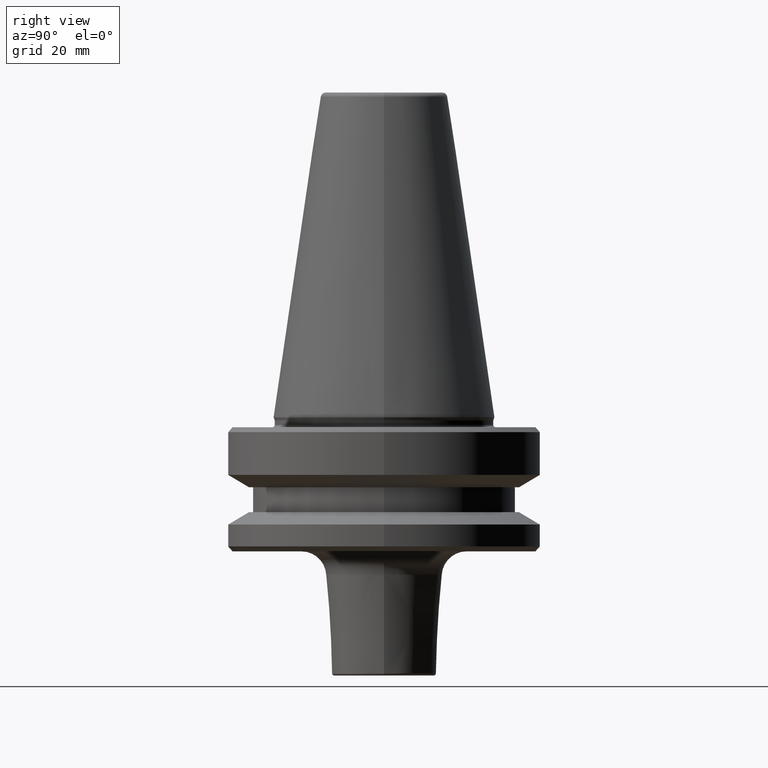
[diagram: clean part render]
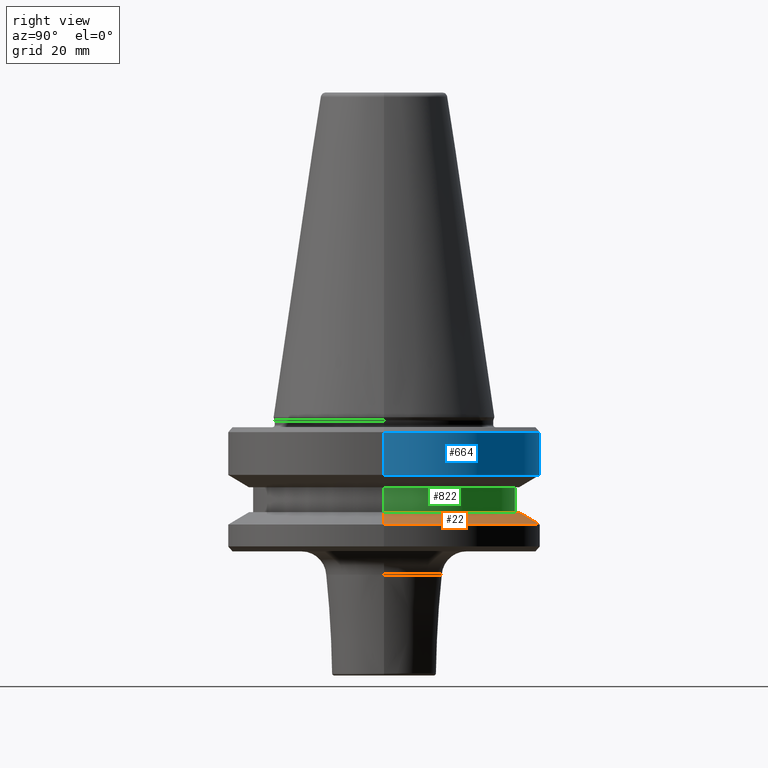
[diagram: same view with three faces highlighted in distinct colors, each labeled with its STEP entity id]
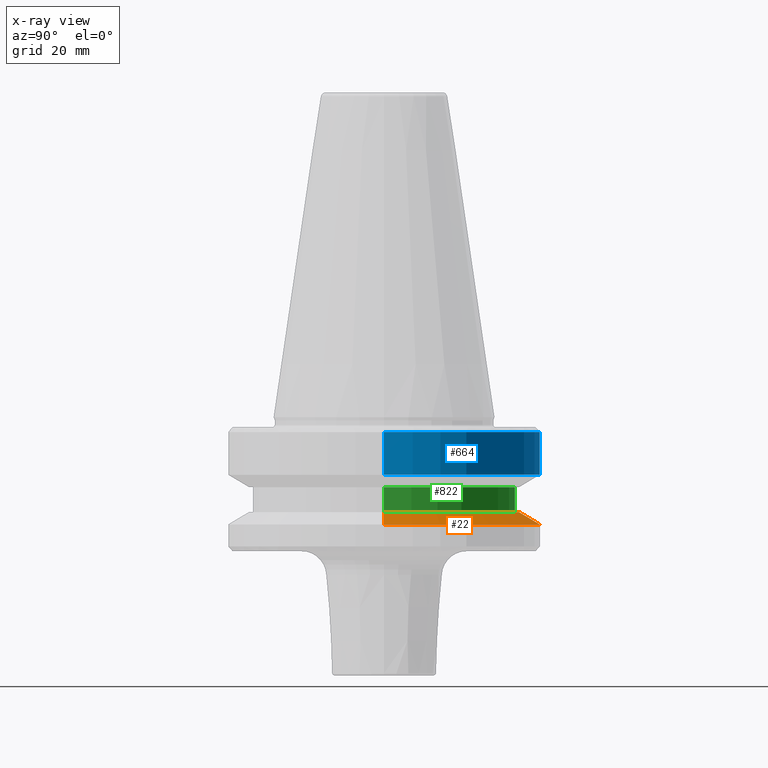
[diagram: x-ray of the same camera — body ghosted, the three highlighted faces saturated]
A machine part, right view with three faces highlighted in distinct colors.
The next image is the same camera in x-ray (body ghosted, the three faces saturated) — at least one of them is partly hidden behind the body in this view.
Their STEP definitions:

[orange] entity #22 — the highlighted conical surface has half-angle 60 deg.
#6 = VERTEX_POINT ( 'NONE', #226 ) ;
#22 = ADVANCED_FACE ( 'NONE', ( #801 ), #705, .T. ) ;
#25 = CARTESIAN_POINT ( 'NONE',  ( -31.50000000000008500, 3.857637417314172900E-015, -87.00014200631733300 ) ) ;
#101 = CARTESIAN_POINT ( 'NONE',  ( 0.0000000000000000000, 0.0000000000000000000, -87.00014200631733300 ) ) ;
#127 = EDGE_LOOP ( 'NONE', ( #557, #546, #905, #637 ) ) ;
#166 = CARTESIAN_POINT ( 'NONE',  ( 0.0000000000000000000, 0.0000000000000000000, -87.00014200631733300 ) ) ;
#174 = CARTESIAN_POINT ( 'NONE',  ( 0.0000000000000000000, 0.0000000000000000000, -84.50000000000068200 ) ) ;
#200 = AXIS2_PLACEMENT_3D ( 'NONE', #174, #812, #253 ) ;
#208 = EDGE_CURVE ( 'NONE', #287, #886, #563, .T. ) ;
#221 = CARTESIAN_POINT ( 'NONE',  ( 31.50000000000008500, 0.0000000000000000000, -87.00014200631733300 ) ) ;
#226 = CARTESIAN_POINT ( 'NONE',  ( 27.16962701892256100, 3.592478546794633900E-015, -84.50000000000068200 ) ) ;
#235 = DIRECTION ( 'NONE',  ( -0.8660254037844332700, 0.0000000000000000000, -0.5000000000000093300 ) ) ;
#244 = CIRCLE ( 'NONE', #919, 31.50000000000008500 ) ;
#253 = DIRECTION ( 'NONE',  ( 1.000000000000000000, 0.0000000000000000000, 0.0000000000000000000 ) ) ;
#271 = DIRECTION ( 'NONE',  ( 1.000000000000000000, 0.0000000000000000000, 0.0000000000000000000 ) ) ;
#287 = VERTEX_POINT ( 'NONE', #864 ) ;
#308 = DIRECTION ( 'NONE',  ( 0.8660254037844332700, 1.060575238724900300E-016, -0.5000000000000093300 ) ) ;
#360 = VECTOR ( 'NONE', #308, 1000.000000000000000 ) ;
#405 = DIRECTION ( 'NONE',  ( 0.0000000000000000000, 0.0000000000000000000, -1.000000000000000000 ) ) ;
#414 = EDGE_CURVE ( 'NONE', #846, #886, #244, .T. ) ;
#437 = CIRCLE ( 'NONE', #200, 27.16962701892256100 ) ;
#461 = CARTESIAN_POINT ( 'NONE',  ( 31.50000000000008500, 3.857637417314172900E-015, -87.00014200631733300 ) ) ;
#478 = AXIS2_PLACEMENT_3D ( 'NONE', #166, #405, #655 ) ;
#499 = EDGE_CURVE ( 'NONE', #6, #287, #437, .T. ) ;
#546 = ORIENTED_EDGE ( 'NONE', *, *, #605, .T. ) ;
#556 = CARTESIAN_POINT ( 'NONE',  ( -31.50000000000008500, 0.0000000000000000000, -87.00014200631733300 ) ) ;
#557 = ORIENTED_EDGE ( 'NONE', *, *, #499, .F. ) ;
#563 = LINE ( 'NONE', #556, #744 ) ;
#605 = EDGE_CURVE ( 'NONE', #6, #846, #784, .T. ) ;
#637 = ORIENTED_EDGE ( 'NONE', *, *, #208, .F. ) ;
#655 = DIRECTION ( 'NONE',  ( -1.000000000000000000, 0.0000000000000000000, 0.0000000000000000000 ) ) ;
#705 = CONICAL_SURFACE ( 'NONE', #478, 31.50000000000008500, 1.047197551196587000 ) ;
#744 = VECTOR ( 'NONE', #235, 1000.000000000000000 ) ;
#745 = DIRECTION ( 'NONE',  ( -0.0000000000000000000, -0.0000000000000000000, 1.000000000000000000 ) ) ;
#784 = LINE ( 'NONE', #461, #360 ) ;
#801 = FACE_OUTER_BOUND ( 'NONE', #127, .T. ) ;
#812 = DIRECTION ( 'NONE',  ( -0.0000000000000000000, -0.0000000000000000000, 1.000000000000000000 ) ) ;
#846 = VERTEX_POINT ( 'NONE', #221 ) ;
#864 = CARTESIAN_POINT ( 'NONE',  ( -27.16962701892256100, 0.0000000000000000000, -84.50000000000068200 ) ) ;
#886 = VERTEX_POINT ( 'NONE', #25 ) ;
#905 = ORIENTED_EDGE ( 'NONE', *, *, #414, .T. ) ;
#919 = AXIS2_PLACEMENT_3D ( 'NONE', #101, #745, #271 ) ;

[blue] entity #664 — the highlighted cylindrical surface (partial cylindrical patch) has radius 31.5 mm, axis along (-0, -0, 1).
#16 = VECTOR ( 'NONE', #19, 1000.000000000000000 ) ;
#19 = DIRECTION ( 'NONE',  ( -0.0000000000000000000, -0.0000000000000000000, 1.000000000000000000 ) ) ;
#41 = VERTEX_POINT ( 'NONE', #233 ) ;
#74 = VERTEX_POINT ( 'NONE', #185 ) ;
#90 = CIRCLE ( 'NONE', #164, 31.50000000000008500 ) ;
#102 = VERTEX_POINT ( 'NONE', #160 ) ;
#103 = CARTESIAN_POINT ( 'NONE',  ( 0.0000000000000000000, 0.0000000000000000000, -68.40000000000046000 ) ) ;
#152 = ORIENTED_EDGE ( 'NONE', *, *, #394, .F. ) ;
#153 = VECTOR ( 'NONE', #594, 1000.000000000000000 ) ;
#160 = CARTESIAN_POINT ( 'NONE',  ( -31.50000000000008500, 3.857637417314172900E-015, -68.40000000000046000 ) ) ;
#164 = AXIS2_PLACEMENT_3D ( 'NONE', #722, #644, #241 ) ;
#185 = CARTESIAN_POINT ( 'NONE',  ( 31.50000000000008500, 0.0000000000000000000, -68.40000000000046000 ) ) ;
#223 = FACE_OUTER_BOUND ( 'NONE', #348, .T. ) ;
#233 = CARTESIAN_POINT ( 'NONE',  ( 31.50000000000008500, 0.0000000000000000000, -76.99985799368391800 ) ) ;
#237 = ORIENTED_EDGE ( 'NONE', *, *, #660, .T. ) ;
#241 = DIRECTION ( 'NONE',  ( 1.000000000000000000, 0.0000000000000000000, 0.0000000000000000000 ) ) ;
#348 = EDGE_LOOP ( 'NONE', ( #641, #237, #922, #152 ) ) ;
#394 = EDGE_CURVE ( 'NONE', #41, #74, #673, .T. ) ;
#430 = VERTEX_POINT ( 'NONE', #602 ) ;
#465 = CARTESIAN_POINT ( 'NONE',  ( -31.50000000000008500, 3.857637417314172900E-015, 6.357346922996331500 ) ) ;
#481 = CYLINDRICAL_SURFACE ( 'NONE', #898, 31.50000000000008500 ) ;
#594 = DIRECTION ( 'NONE',  ( -0.0000000000000000000, -0.0000000000000000000, 1.000000000000000000 ) ) ;
#597 = CARTESIAN_POINT ( 'NONE',  ( 31.50000000000008500, 0.0000000000000000000, 6.357346922996331500 ) ) ;
#602 = CARTESIAN_POINT ( 'NONE',  ( -31.50000000000008500, 3.857637417314172900E-015, -76.99985799368391800 ) ) ;
#641 = ORIENTED_EDGE ( 'NONE', *, *, #1033, .T. ) ;
#644 = DIRECTION ( 'NONE',  ( -0.0000000000000000000, -0.0000000000000000000, 1.000000000000000000 ) ) ;
#660 = EDGE_CURVE ( 'NONE', #430, #102, #827, .T. ) ;
#664 = ADVANCED_FACE ( 'NONE', ( #223 ), #481, .T. ) ;
#673 = LINE ( 'NONE', #597, #16 ) ;
#722 = CARTESIAN_POINT ( 'NONE',  ( 0.0000000000000000000, 0.0000000000000000000, -76.99985799368391800 ) ) ;
#727 = CIRCLE ( 'NONE', #775, 31.50000000000008500 ) ;
#746 = CARTESIAN_POINT ( 'NONE',  ( 0.0000000000000000000, 0.0000000000000000000, 6.357346922996331500 ) ) ;
#775 = AXIS2_PLACEMENT_3D ( 'NONE', #103, #974, #1055 ) ;
#827 = LINE ( 'NONE', #465, #153 ) ;
#898 = AXIS2_PLACEMENT_3D ( 'NONE', #746, #1012, #976 ) ;
#922 = ORIENTED_EDGE ( 'NONE', *, *, #975, .F. ) ;
#974 = DIRECTION ( 'NONE',  ( -0.0000000000000000000, -0.0000000000000000000, 1.000000000000000000 ) ) ;
#975 = EDGE_CURVE ( 'NONE', #74, #102, #727, .T. ) ;
#976 = DIRECTION ( 'NONE',  ( 1.000000000000000000, 0.0000000000000000000, 0.0000000000000000000 ) ) ;
#1012 = DIRECTION ( 'NONE',  ( -0.0000000000000000000, -0.0000000000000000000, 1.000000000000000000 ) ) ;
#1033 = EDGE_CURVE ( 'NONE', #41, #430, #90, .T. ) ;
#1055 = DIRECTION ( 'NONE',  ( 1.000000000000000000, 0.0000000000000000000, 0.0000000000000000000 ) ) ;

[green] entity #822 — the highlighted cylindrical surface (partial cylindrical patch) has radius 26.5 mm, axis along (-0, -0, 1).
#34 = CARTESIAN_POINT ( 'NONE',  ( -26.50000000000019200, 3.245314017740509400E-015, -84.50000000000068200 ) ) ;
#82 = VERTEX_POINT ( 'NONE', #860 ) ;
#117 = VECTOR ( 'NONE', #512, 1000.000000000000000 ) ;
#125 = AXIS2_PLACEMENT_3D ( 'NONE', #929, #1007, #376 ) ;
#141 = EDGE_CURVE ( 'NONE', #618, #824, #553, .T. ) ;
#190 = CIRCLE ( 'NONE', #125, 26.50000000000019200 ) ;
#209 = DIRECTION ( 'NONE',  ( -0.0000000000000000000, -0.0000000000000000000, 1.000000000000000000 ) ) ;
#238 = ORIENTED_EDGE ( 'NONE', *, *, #628, .F. ) ;
#239 = LINE ( 'NONE', #768, #431 ) ;
#276 = ORIENTED_EDGE ( 'NONE', *, *, #799, .F. ) ;
#304 = VERTEX_POINT ( 'NONE', #487 ) ;
#350 = AXIS2_PLACEMENT_3D ( 'NONE', #1006, #209, #692 ) ;
#376 = DIRECTION ( 'NONE',  ( 1.000000000000000000, 0.0000000000000000000, 0.0000000000000000000 ) ) ;
#383 = ORIENTED_EDGE ( 'NONE', *, *, #141, .T. ) ;
#431 = VECTOR ( 'NONE', #771, 1000.000000000000000 ) ;
#472 = DIRECTION ( 'NONE',  ( 1.000000000000000000, 0.0000000000000000000, 0.0000000000000000000 ) ) ;
#487 = CARTESIAN_POINT ( 'NONE',  ( -26.50000000000019200, 3.245314017740509400E-015, -79.50000000000012800 ) ) ;
#512 = DIRECTION ( 'NONE',  ( -0.0000000000000000000, -0.0000000000000000000, 1.000000000000000000 ) ) ;
#524 = ORIENTED_EDGE ( 'NONE', *, *, #723, .T. ) ;
#537 = CARTESIAN_POINT ( 'NONE',  ( 26.50000000000019200, 0.0000000000000000000, -84.50000000000068200 ) ) ;
#553 = CIRCLE ( 'NONE', #671, 26.50000000000019200 ) ;
#568 = CYLINDRICAL_SURFACE ( 'NONE', #350, 26.50000000000019200 ) ;
#618 = VERTEX_POINT ( 'NONE', #537 ) ;
#628 = EDGE_CURVE ( 'NONE', #618, #82, #754, .T. ) ;
#671 = AXIS2_PLACEMENT_3D ( 'NONE', #1009, #728, #472 ) ;
#692 = DIRECTION ( 'NONE',  ( 1.000000000000000000, 0.0000000000000000000, 0.0000000000000000000 ) ) ;
#723 = EDGE_CURVE ( 'NONE', #824, #304, #239, .T. ) ;
#728 = DIRECTION ( 'NONE',  ( -0.0000000000000000000, -0.0000000000000000000, 1.000000000000000000 ) ) ;
#754 = LINE ( 'NONE', #776, #117 ) ;
#768 = CARTESIAN_POINT ( 'NONE',  ( -26.50000000000019200, 3.245314017740509400E-015, 6.357346922996331500 ) ) ;
#771 = DIRECTION ( 'NONE',  ( -0.0000000000000000000, -0.0000000000000000000, 1.000000000000000000 ) ) ;
#776 = CARTESIAN_POINT ( 'NONE',  ( 26.50000000000019200, 0.0000000000000000000, 6.357346922996331500 ) ) ;
#799 = EDGE_CURVE ( 'NONE', #82, #304, #190, .T. ) ;
#803 = FACE_OUTER_BOUND ( 'NONE', #931, .T. ) ;
#822 = ADVANCED_FACE ( 'NONE', ( #803 ), #568, .T. ) ;
#824 = VERTEX_POINT ( 'NONE', #34 ) ;
#860 = CARTESIAN_POINT ( 'NONE',  ( 26.50000000000019200, 0.0000000000000000000, -79.50000000000012800 ) ) ;
#929 = CARTESIAN_POINT ( 'NONE',  ( 0.0000000000000000000, 0.0000000000000000000, -79.50000000000012800 ) ) ;
#931 = EDGE_LOOP ( 'NONE', ( #383, #524, #276, #238 ) ) ;
#1006 = CARTESIAN_POINT ( 'NONE',  ( 0.0000000000000000000, 0.0000000000000000000, 6.357346922996331500 ) ) ;
#1007 = DIRECTION ( 'NONE',  ( -0.0000000000000000000, -0.0000000000000000000, 1.000000000000000000 ) ) ;
#1009 = CARTESIAN_POINT ( 'NONE',  ( 0.0000000000000000000, 0.0000000000000000000, -84.50000000000068200 ) ) ;